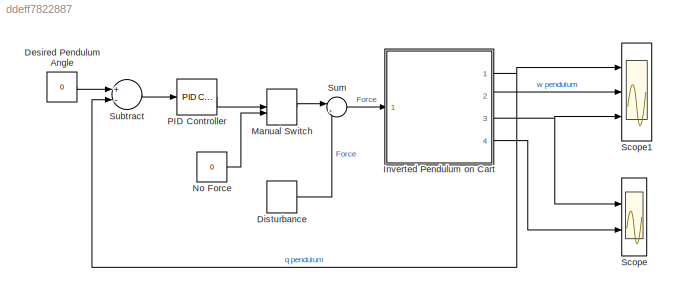
MODEL slx_ddeff7822887
KIND model
CONFIG AbsTol = auto
CONFIG EnableMultiTasking = on
CONFIG FixedStep = auto
CONFIG MaxStep = auto
CONFIG MinStep = auto
CONFIG RelTol = 1e-3
CONFIG SampleTimeConstraint = Unconstrained
CONFIG Solver = VariableStepAuto
CONFIG SolverName = VariableStepAuto
CONFIG StartTime = 0.0
CONFIG StopTime = 10.0
BLOCK [Constant] Desired Pendulum Angle
  Value = 0
BLOCK [DiscretePulseGenerator] Disturbance
  Amplitude = 1000
  Period = 10
  PhaseDelay = 1
  Ports = [0, 1]
  PulseType = Time based
  PulseWidth = 0.01
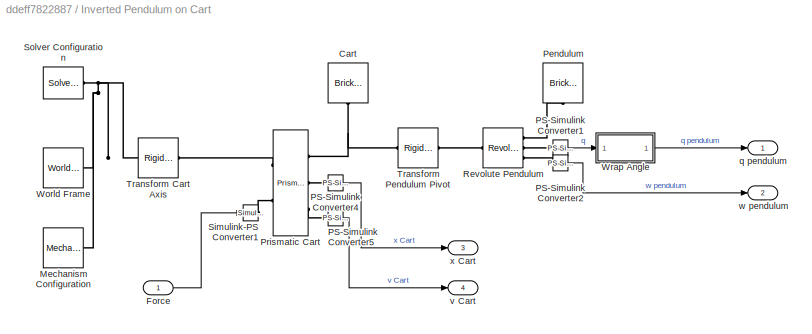
BLOCK [SubSystem] Inverted Pendulum on Cart
  Ports = [1, 4]
  RequestExecContextInheritance = off
BLOCK [Reference] Inverted Pendulum on Cart/Cart  REF=sm_lib/Body Elements/Brick Solid
  Ports = [0, 0, 0, 0, 0, 0, 1]
  SourceBlock = sm_lib/Body Elements/Brick Solid
  SourceProductBaseCode = MS
  SourceProductName = Simscape Multibody
  SourceType = Brick Solid
BLOCK [Inport] Inverted Pendulum on Cart/Force
  IconDisplay = Port number
BLOCK [Reference] Inverted Pendulum on Cart/Mechanism Configuration  REF=sm_lib/Utilities/Mechanism
Configuration
  Ports = [0, 0, 0, 0, 0, 0, 1]
  SourceBlock = sm_lib/Utilities/Mechanism\nConfiguration
  SourceProductBaseCode = MS
  SourceProductName = Simscape Multibody
  SourceType = Mechanism\nConfiguration
BLOCK [Reference] Inverted Pendulum on Cart/PS-Simulink Converter1  REF=nesl_utility/PS-Simulink
Converter
  Ports = [0, 1, 0, 0, 0, 1]
  SourceBlock = nesl_utility/PS-Simulink\nConverter
  SourceProductBaseCode = SS
  SourceProductName = Simscape
  SourceType = PS-Simulink\nConverter
BLOCK [Reference] Inverted Pendulum on Cart/PS-Simulink Converter2  REF=nesl_utility/PS-Simulink
Converter
  Ports = [0, 1, 0, 0, 0, 1]
  SourceBlock = nesl_utility/PS-Simulink\nConverter
  SourceProductBaseCode = SS
  SourceProductName = Simscape
  SourceType = PS-Simulink\nConverter
BLOCK [Reference] Inverted Pendulum on Cart/PS-Simulink Converter4  REF=nesl_utility/PS-Simulink
Converter
  Ports = [0, 1, 0, 0, 0, 1]
  SourceBlock = nesl_utility/PS-Simulink\nConverter
  SourceProductBaseCode = SS
  SourceProductName = Simscape
  SourceType = PS-Simulink\nConverter
BLOCK [Reference] Inverted Pendulum on Cart/PS-Simulink Converter5  REF=nesl_utility/PS-Simulink
Converter
  Ports = [0, 1, 0, 0, 0, 1]
  SourceBlock = nesl_utility/PS-Simulink\nConverter
  SourceProductBaseCode = SS
  SourceProductName = Simscape
  SourceType = PS-Simulink\nConverter
BLOCK [Reference] Inverted Pendulum on Cart/Pendulum  REF=sm_lib/Body Elements/Brick Solid
  Ports = [0, 0, 0, 0, 0, 1]
  SourceBlock = sm_lib/Body Elements/Brick Solid
  SourceProductBaseCode = MS
  SourceProductName = Simscape Multibody
  SourceType = Brick Solid
BLOCK [Reference] Inverted Pendulum on Cart/Prismatic Cart  REF=sm_lib/Joints/Prismatic
Joint
  Ports = [0, 0, 0, 0, 0, 2, 3]
  SourceBlock = sm_lib/Joints/Prismatic\nJoint
  SourceProductBaseCode = MS
  SourceProductName = Simscape Multibody
  SourceType = Prismatic\nJoint
BLOCK [Reference] Inverted Pendulum on Cart/Revolute Pendulum  REF=sm_lib/Joints/Revolute Joint
  Ports = [0, 0, 0, 0, 0, 1, 3]
  SourceBlock = sm_lib/Joints/Revolute Joint
  SourceProductBaseCode = MS
  SourceProductName = Simscape Multibody
  SourceType = Revolute Joint
BLOCK [Reference] Inverted Pendulum on Cart/Simulink-PS Converter1  REF=nesl_utility/Simulink-PS
Converter
  Ports = [1, 0, 0, 0, 0, 0, 1]
  SourceBlock = nesl_utility/Simulink-PS\nConverter
  SourceProductBaseCode = SS
  SourceProductName = Simscape
  SourceType = Simulink-PS\nConverter
BLOCK [Reference] Inverted Pendulum on Cart/Solver Configuration  REF=nesl_utility/Solver
Configuration
  Ports = [0, 0, 0, 0, 0, 0, 1]
  SourceBlock = nesl_utility/Solver\nConfiguration
  SourceProductBaseCode = SS
  SourceProductName = Simscape
  SourceType = Solver\nConfiguration
BLOCK [Reference] Inverted Pendulum on Cart/Transform Cart Axis  REF=sm_lib/Frames and
Transforms/Rigid
Transform
  Ports = [0, 0, 0, 0, 0, 1, 1]
  SourceBlock = sm_lib/Frames and\nTransforms/Rigid\nTransform
  SourceProductBaseCode = MS
  SourceProductName = Simscape Multibody
  SourceType = Rigid\nTransform
BLOCK [Reference] Inverted Pendulum on Cart/Transform Pendulum Pivot  REF=sm_lib/Frames and
Transforms/Rigid
Transform
  Ports = [0, 0, 0, 0, 0, 1, 1]
  SourceBlock = sm_lib/Frames and\nTransforms/Rigid\nTransform
  SourceProductBaseCode = MS
  SourceProductName = Simscape Multibody
  SourceType = Rigid\nTransform
BLOCK [Reference] Inverted Pendulum on Cart/World Frame  REF=sm_lib/Frames and
Transforms/World Frame
  Ports = [0, 0, 0, 0, 0, 0, 1]
  SourceBlock = sm_lib/Frames and\nTransforms/World Frame
  SourceProductBaseCode = MS
  SourceProductName = Simscape Multibody
  SourceType = World Frame
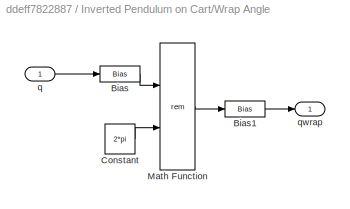
BLOCK [SubSystem] Inverted Pendulum on Cart/Wrap Angle
  Ports = [1, 1]
  RequestExecContextInheritance = off
BLOCK [Bias] Inverted Pendulum on Cart/Wrap Angle/Bias
  Bias = pi
  SaturateOnIntegerOverflow = off
BLOCK [Bias] Inverted Pendulum on Cart/Wrap Angle/Bias1
  Bias = -pi
  SaturateOnIntegerOverflow = off
BLOCK [Constant] Inverted Pendulum on Cart/Wrap Angle/Constant
  Value = 2*pi
BLOCK [Math] Inverted Pendulum on Cart/Wrap Angle/Math Function
  Operator = rem
  Ports = [2, 1]
BLOCK [Inport] Inverted Pendulum on Cart/Wrap Angle/q
  IconDisplay = Port number
BLOCK [Outport] Inverted Pendulum on Cart/Wrap Angle/qwrap
  IconDisplay = Port number
  VectorParamsAs1DForOutWhenUnconnected = off
BLOCK [Outport] Inverted Pendulum on Cart/q pendulum
  IconDisplay = Port number
  VectorParamsAs1DForOutWhenUnconnected = off
BLOCK [Outport] Inverted Pendulum on Cart/v Cart
  IconDisplay = Port number
  Port = 4
  VectorParamsAs1DForOutWhenUnconnected = off
BLOCK [Outport] Inverted Pendulum on Cart/w pendulum
  IconDisplay = Port number
  Port = 2
  VectorParamsAs1DForOutWhenUnconnected = off
BLOCK [Outport] Inverted Pendulum on Cart/x Cart
  IconDisplay = Port number
  Port = 3
  VectorParamsAs1DForOutWhenUnconnected = off
BLOCK [ManualSwitch] Manual Switch
BLOCK [Constant] No Force
  Value = 0
BLOCK [Reference] PID Controller  REF=simulink/Continuous/PID Controller
  Ports = [1, 1]
  SourceBlock = simulink/Continuous/PID Controller
  SourceProductBaseCode = SL
  SourceProductName = Simulink
  SourceType = PID 1dof
BLOCK [Scope] Scope
  Floating = off
  NumInputPorts = 2
  Ports = [2]
  ScopeSpecificationString = Simulink.scopes.TimeScopeBlockCfg('CurrentConfiguration', extmgr.ConfigurationSet(extmgr.Configuration('Core','General UI',true),extmgr.Configuration('Core','Source UI',true),extmgr.Configuration('Sources','WiredSimulink',true,'DataLoggingLimitDataPoints',true,'DataLoggingSaveFormat','Array','DataLoggingDecimation','1','DataLoggingDecimateData',true),extmgr.Configuration('Visuals','Time Domain',tr...<+1654ch>
BLOCK [Scope] Scope1
  Floating = off
  NumInputPorts = 3
  Ports = [3]
  ScopeSpecificationString = Simulink.scopes.TimeScopeBlockCfg('CurrentConfiguration', extmgr.ConfigurationSet(extmgr.Configuration('Core','General UI',true),extmgr.Configuration('Core','Source UI',true),extmgr.Configuration('Sources','WiredSimulink',true,'DataLoggingVariableName','ScopeData1'),extmgr.Configuration('Visuals','Time Domain',true,'SerializedDisplays',{struct('MinYLimReal','-0.00867','MaxYLimReal','0.07711','YLab...<+2758ch>
BLOCK [Sum] Subtract
  InputSameDT = off
  Inputs = +-
  OutDataTypeStr = Inherit: Inherit via internal rule
  Ports = [2, 1]
  SaturateOnIntegerOverflow = off
BLOCK [Sum] Sum
  IconShape = round
  InputSameDT = off
  Inputs = |++
  OutDataTypeStr = Inherit: Inherit via internal rule
  Ports = [2, 1]
  SaturateOnIntegerOverflow = off
LINE Desired Pendulum Angle:1 -> Subtract:1
LINE Disturbance:1 -> Sum:2
LINE Inverted Pendulum on Cart/Force:1 -> Inverted Pendulum on Cart/Simulink-PS Converter1:1
LINE Inverted Pendulum on Cart/PS-Simulink Converter1:1 -> Inverted Pendulum on Cart/Wrap Angle:1
LINE Inverted Pendulum on Cart/PS-Simulink Converter2:1 -> Inverted Pendulum on Cart/w pendulum:1
LINE Inverted Pendulum on Cart/PS-Simulink Converter4:1 -> Inverted Pendulum on Cart/x Cart:1
LINE Inverted Pendulum on Cart/PS-Simulink Converter5:1 -> Inverted Pendulum on Cart/v Cart:1
LINE Inverted Pendulum on Cart/Wrap Angle/Bias1:1 -> Inverted Pendulum on Cart/Wrap Angle/qwrap:1
LINE Inverted Pendulum on Cart/Wrap Angle/Bias:1 -> Inverted Pendulum on Cart/Wrap Angle/Math Function:1
LINE Inverted Pendulum on Cart/Wrap Angle/Constant:1 -> Inverted Pendulum on Cart/Wrap Angle/Math Function:2
LINE Inverted Pendulum on Cart/Wrap Angle/Math Function:1 -> Inverted Pendulum on Cart/Wrap Angle/Bias1:1
LINE Inverted Pendulum on Cart/Wrap Angle/q:1 -> Inverted Pendulum on Cart/Wrap Angle/Bias:1
LINE Inverted Pendulum on Cart/Wrap Angle:1 -> Inverted Pendulum on Cart/q pendulum:1
NET Inverted Pendulum on Cart:1 -> Scope1:1, Subtract:2
LINE Inverted Pendulum on Cart:2 -> Scope1:2
NET Inverted Pendulum on Cart:3 -> Scope1:3, Scope:1
LINE Inverted Pendulum on Cart:4 -> Scope:2
LINE Manual Switch:1 -> Sum:1
LINE No Force:1 -> Manual Switch:2
LINE PID Controller:1 -> Manual Switch:1
LINE Subtract:1 -> PID Controller:1
LINE Sum:1 -> Inverted Pendulum on Cart:1
PNET net1: Inverted Pendulum on Cart/Cart:RConn1 -- Inverted Pendulum on Cart/Prismatic Cart:RConn1 -- Inverted Pendulum on Cart/Transform Pendulum Pivot:LConn1
PNET net2: Inverted Pendulum on Cart/Mechanism Configuration:RConn1 -- Inverted Pendulum on Cart/Solver Configuration:RConn1 -- Inverted Pendulum on Cart/Transform Cart Axis:LConn1 -- Inverted Pendulum on Cart/World Frame:RConn1
PLINE Inverted Pendulum on Cart/PS-Simulink Converter1:LConn1 -- Inverted Pendulum on Cart/Revolute Pendulum:RConn2
PLINE Inverted Pendulum on Cart/PS-Simulink Converter2:LConn1 -- Inverted Pendulum on Cart/Revolute Pendulum:RConn3
PLINE Inverted Pendulum on Cart/PS-Simulink Converter4:LConn1 -- Inverted Pendulum on Cart/Prismatic Cart:RConn2
PLINE Inverted Pendulum on Cart/PS-Simulink Converter5:LConn1 -- Inverted Pendulum on Cart/Prismatic Cart:RConn3
PLINE Inverted Pendulum on Cart/Pendulum:LConn1 -- Inverted Pendulum on Cart/Revolute Pendulum:RConn1
PLINE Inverted Pendulum on Cart/Prismatic Cart:LConn1 -- Inverted Pendulum on Cart/Transform Cart Axis:RConn1
PLINE Inverted Pendulum on Cart/Prismatic Cart:LConn2 -- Inverted Pendulum on Cart/Simulink-PS Converter1:RConn1
PLINE Inverted Pendulum on Cart/Revolute Pendulum:LConn1 -- Inverted Pendulum on Cart/Transform Pendulum Pivot:RConn1
note: NET lines group one-source signal fan-out (src -> all destinations, sorted); 1:1 wires keep LINE; PNET lines group multi-terminal physical nets as a canonical sorted terminal list (undirected conserving connections); 2-terminal nets keep the pairwise PLINE form
